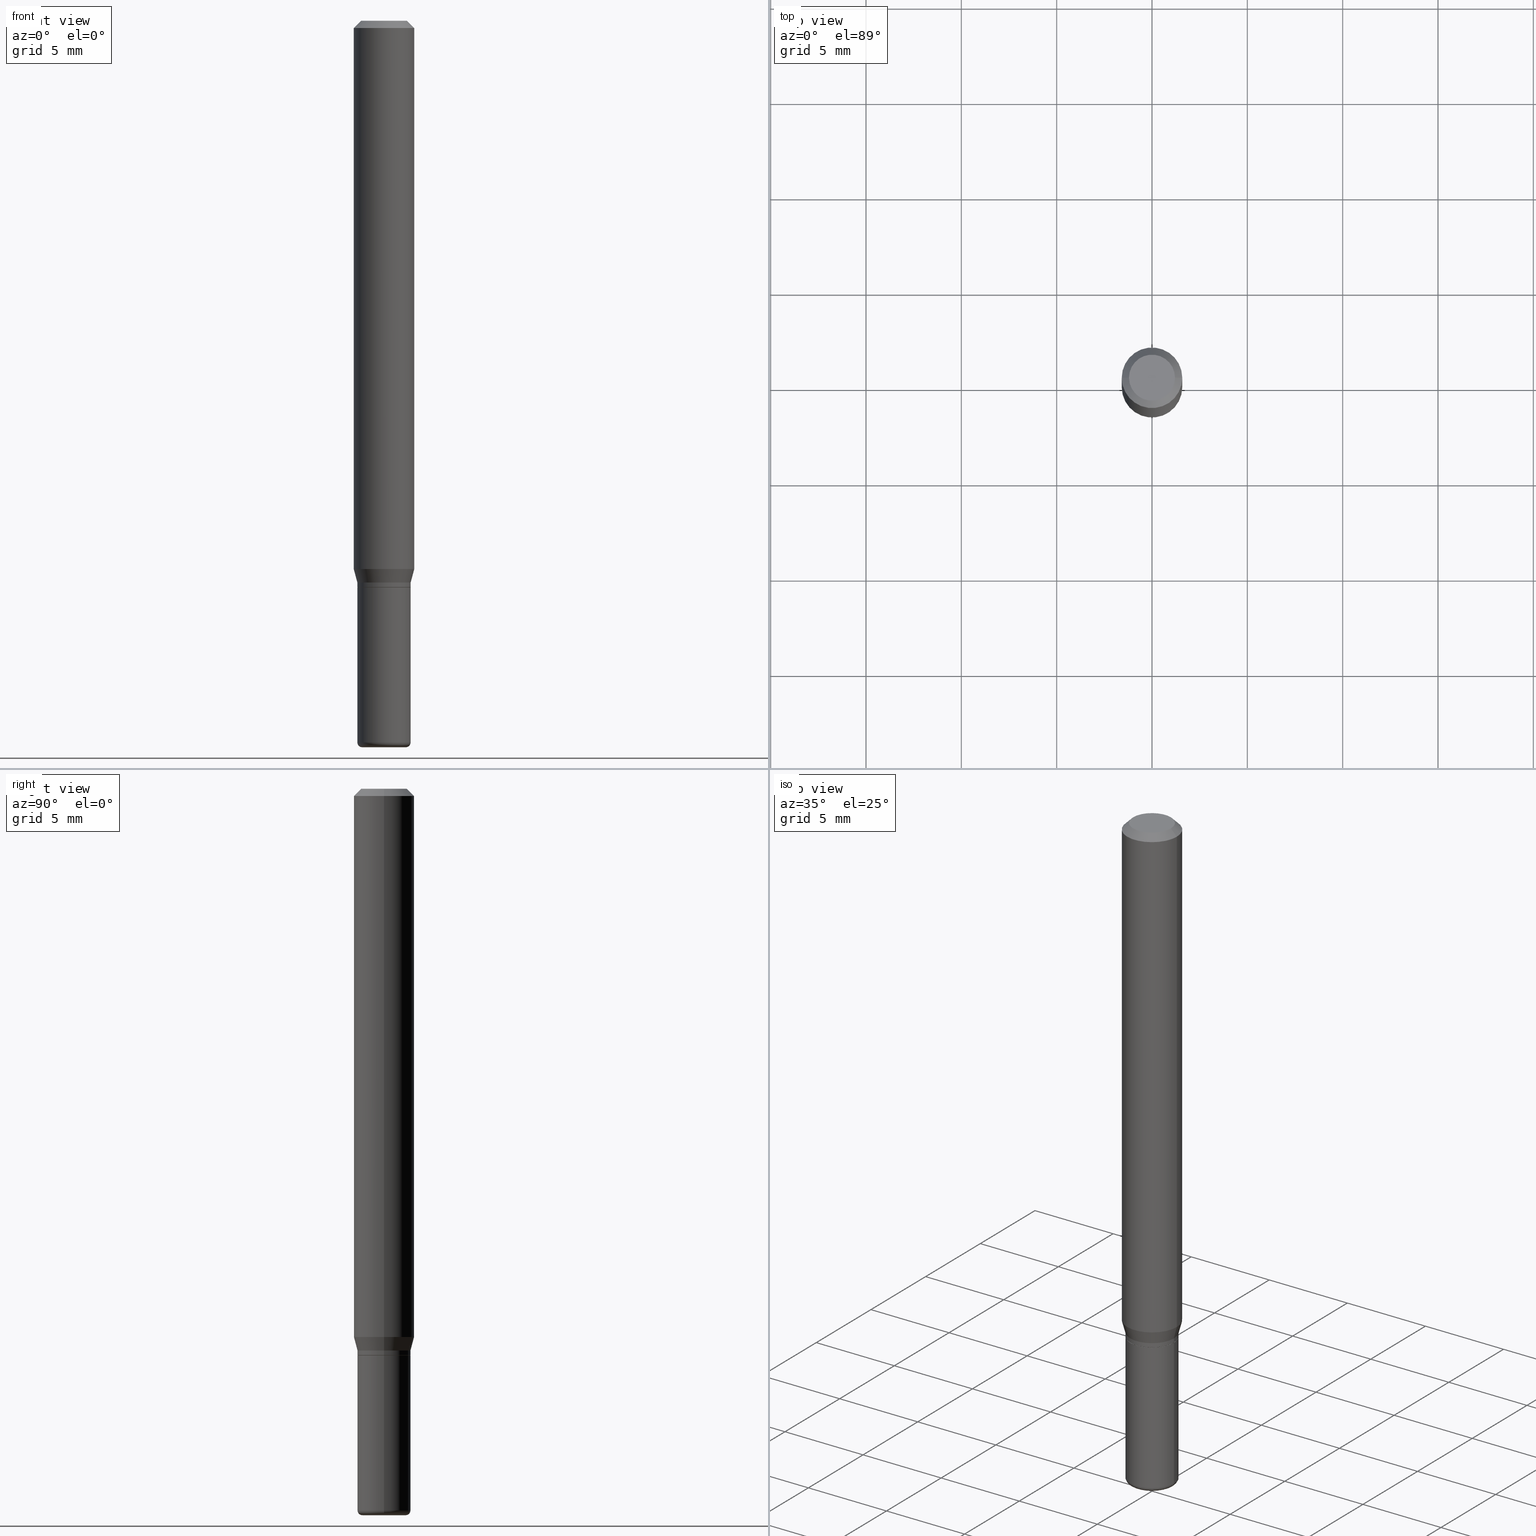
[diagram: canonical four-view strip — front | top / right | iso, engineering-drawing reading convention]
A machine part, canonical four-view strip (front | top / right | iso — engineering-drawing reading convention). The complete STEP part file that produces these views, byte-faithful:
ISO-10303-21;
HEADER;
FILE_DESCRIPTION (( 'STEP AP203' ),
    '1' );
FILE_NAME ('08755.STEP',
    '2024-02-29T20:50:27',
    ( '' ),
    ( '' ),
    'SwSTEP 2.0',
    'SolidWorks 2023',
    '' );
FILE_SCHEMA (( 'CONFIG_CONTROL_DESIGN' ));
ENDSEC;

DATA;
#1 = VERTEX_POINT ( 'NONE', #203 ) ;
#2 = DIRECTION ( 'NONE',  ( 2.438088387897960049E-29, -3.491481338843145188E-15, -1.000000000000000000 ) ) ;
#3 = VERTEX_POINT ( 'NONE', #115 ) ;
#4 = CARTESIAN_POINT ( 'NONE',  ( 2.859975768833516703E-29, -4.083287425777058564E-15, -1.169499999999999984 ) ) ;
#5 = CIRCLE ( 'NONE', #67, 0.05500000000000000028 ) ;
#6 = APPROVAL_ROLE ( '' ) ;
#7 = CC_DESIGN_PERSON_AND_ORGANIZATION_ASSIGNMENT ( #362, #282, ( #177 ) ) ;
#8 = ORIENTED_EDGE ( 'NONE', *, *, #351, .F. ) ;
#9 = CARTESIAN_POINT ( 'NONE',  ( -0.06250000000000000000, 4.440892098500626162E-16, -3.074334431409316114E-30 ) ) ;
#10 = DIRECTION ( 'NONE',  ( -2.438088387897960049E-29, 3.491481338843145188E-15, 1.000000000000000000 ) ) ;
#11 = CC_DESIGN_DATE_AND_TIME_ASSIGNMENT ( #429, #149, ( #413 ) ) ;
#12 = AXIS2_PLACEMENT_3D ( 'NONE', #419, #475, #427 ) ;
#13 = VECTOR ( 'NONE', #367, 39.37007874015748143 ) ;
#14 = LOCAL_TIME ( 15, 50, 27.00000000000000000, #34 ) ;
#15 = VERTEX_POINT ( 'NONE', #314 ) ;
#16 = DIRECTION ( 'NONE',  ( 1.000000000000000000, -6.982962677686268288E-15, 4.883557194083113462E-29 ) ) ;
#17 = EDGE_CURVE ( 'NONE', #211, #3, #66, .T. ) ;
#18 = ORIENTED_EDGE ( 'NONE', *, *, #428, .T. ) ;
#19 = ADVANCED_FACE ( 'NONE', ( #389 ), #287, .T. ) ;
#20 = LENGTH_MEASURE_WITH_UNIT ( LENGTH_MEASURE( 0.02539999999999999897 ), #450 );
#21 = AXIS2_PLACEMENT_3D ( 'NONE', #144, #10, #60 ) ;
#22 = ORIENTED_EDGE ( 'NONE', *, *, #179, .T. ) ;
#23 = CONICAL_SURFACE ( 'NONE', #399, 0.06250000000000000000, 0.7853981633974488341 ) ;
#24 = PLANE ( 'NONE',  #21 ) ;
#25 = DIRECTION ( 'NONE',  ( 1.000000000000000000, -6.982962677686262766E-15, 0.000000000000000000 ) ) ;
#26 = DIRECTION ( 'NONE',  ( -2.445468806185136597E-29, 3.491481338843145583E-15, 1.000000000000000000 ) ) ;
#27 = DIRECTION ( 'NONE',  ( -2.445468806185136597E-29, 3.491481338843145583E-15, 1.000000000000000000 ) ) ;
#28 = AXIS2_PLACEMENT_3D ( 'NONE', #64, #348, #16 ) ;
#29 = AXIS2_PLACEMENT_3D ( 'NONE', #4, #312, #127 ) ;
#30 = LINE ( 'NONE', #196, #168 ) ;
#31 = CYLINDRICAL_SURFACE ( 'NONE', #423, 0.05499999999999995864 ) ;
#32 = DIRECTION ( 'NONE',  ( -2.445468806185136877E-29, 3.491481338843145188E-15, 1.000000000000000000 ) ) ;
#33 = CARTESIAN_POINT ( 'NONE',  ( -0.05499999999999995171, -3.583810549235585944E-15, -1.160000000000000142 ) ) ;
#34 = COORDINATED_UNIVERSAL_TIME_OFFSET ( 5, 0, .BEHIND. ) ;
#35 = DIRECTION ( 'NONE',  ( 1.000000000000000000, -6.982962677686265922E-15, 4.876176775795935793E-29 ) ) ;
#36 = DIRECTION ( 'NONE',  ( -2.445468806185136597E-29, 3.491481338843145583E-15, 1.000000000000000000 ) ) ;
#37 = DIRECTION ( 'NONE',  ( -2.445468806185136597E-29, 3.491481338843145583E-15, 1.000000000000000000 ) ) ;
#38 = AXIS2_PLACEMENT_3D ( 'NONE', #65, #74, #397 ) ;
#39 = FACE_OUTER_BOUND ( 'NONE', #90, .T. ) ;
#40 = AXIS2_PLACEMENT_3D ( 'NONE', #395, #344, #35 ) ;
#41 = PLANE ( 'NONE',  #436 ) ;
#42 = VERTEX_POINT ( 'NONE', #263 ) ;
#43 = PERSON_AND_ORGANIZATION ( #175, #236 ) ;
#44 = SECURITY_CLASSIFICATION_LEVEL ( 'unclassified' ) ;
#45 = EDGE_LOOP ( 'NONE', ( #207, #277, #22, #117 ) ) ;
#46 = AXIS2_PLACEMENT_3D ( 'NONE', #113, #71, #354 ) ;
#47 = CIRCLE ( 'NONE', #95, 0.06250000000000000000 ) ;
#48 = ORIENTED_EDGE ( 'NONE', *, *, #78, .F. ) ;
#49 = DIRECTION ( 'NONE',  ( 1.000000000000000000, -6.982962677686266711E-15, 4.876176775795935793E-29 ) ) ;
#50 = DIRECTION ( 'NONE',  ( 0.7071067811865479058, -7.319954787623257623E-15, -0.7071067811865471286 ) ) ;
#51 = ORIENTED_EDGE ( 'NONE', *, *, #88, .F. ) ;
#52 = AXIS2_PLACEMENT_3D ( 'NONE', #496, #261, #133 ) ;
#53 = AXIS2_PLACEMENT_3D ( 'NONE', #372, #379, #98 ) ;
#54 = CYLINDRICAL_SURFACE ( 'NONE', #121, 0.05499999999999995864 ) ;
#55 = EDGE_LOOP ( 'NONE', ( #123, #214, #215, #235 ) ) ;
#56 = ORIENTED_EDGE ( 'NONE', *, *, #88, .T. ) ;
#57 = AXIS2_PLACEMENT_3D ( 'NONE', #424, #150, #69 ) ;
#58 = ORIENTED_EDGE ( 'NONE', *, *, #485, .T. ) ;
#59 = EDGE_CURVE ( 'NONE', #368, #42, #249, .T. ) ;
#60 = DIRECTION ( 'NONE',  ( 1.000000000000000000, -6.982962677686265922E-15, 4.876176775795935793E-29 ) ) ;
#61 = DIRECTION ( 'NONE',  ( 1.000000000000000000, 0.000000000000000000, 0.000000000000000000 ) ) ;
#62 = CARTESIAN_POINT ( 'NONE',  ( 2.859975768833516703E-29, -4.083287425777058564E-15, -1.169499999999999984 ) ) ;
#63 = CARTESIAN_POINT ( 'NONE',  ( 2.836743815174758520E-29, -4.050118353058049996E-15, -1.160000000000000142 ) ) ;
#64 = CARTESIAN_POINT ( 'NONE',  ( 3.643748521215853910E-29, -5.202307194876288105E-15, -1.490000000000000213 ) ) ;
#65 = CARTESIAN_POINT ( 'NONE',  ( 3.668203209277704895E-29, -5.237222008264718177E-15, -1.500000000000000222 ) ) ;
#66 = CIRCLE ( 'NONE', #462, 0.05499999999999995171 ) ;
#67 = AXIS2_PLACEMENT_3D ( 'NONE', #181, #418, #290 ) ;
#68 = CC_DESIGN_APPROVAL ( #433, ( #177 ) ) ;
#69 = DIRECTION ( 'NONE',  ( 1.000000000000000000, -6.982962677686266711E-15, 4.876176775795935793E-29 ) ) ;
#70 = ADVANCED_FACE ( 'NONE', ( #39 ), #260, .T. ) ;
#71 = DIRECTION ( 'NONE',  ( -2.445468806185136597E-29, 3.491481338843145583E-15, 1.000000000000000000 ) ) ;
#72 = CARTESIAN_POINT ( 'NONE',  ( -0.05449999999999997208, -3.697787375457225517E-15, -1.170000000000000151 ) ) ;
#73 = FACE_OUTER_BOUND ( 'NONE', #245, .T. ) ;
#74 = DIRECTION ( 'NONE',  ( -2.445468806185136597E-29, 3.491481338843145583E-15, 1.000000000000000000 ) ) ;
#75 = PERSON_AND_ORGANIZATION_ROLE ( 'classification_officer' ) ;
#76 = ORIENTED_EDGE ( 'NONE', *, *, #116, .F. ) ;
#77 = AXIS2_PLACEMENT_3D ( 'NONE', #458, #93, #371 ) ;
#78 = EDGE_CURVE ( 'NONE', #503, #383, #226, .T. ) ;
#79 = CC_DESIGN_APPROVAL ( #138, ( #413 ) ) ;
#80 = LINE ( 'NONE', #517, #329 ) ;
#81 = CALENDAR_DATE ( 2024, 29, 2 ) ;
#82 = ORIENTED_EDGE ( 'NONE', *, *, #151, .T. ) ;
#83 = CARTESIAN_POINT ( 'NONE',  ( 0.04499999999999999833, -5.516540515372169792E-15, -1.490000000000000213 ) ) ;
#84 = APPROVAL_STATUS ( 'not_yet_approved' ) ;
#85 = LINE ( 'NONE', #448, #109 ) ;
#86 = AXIS2_PLACEMENT_3D ( 'NONE', #346, #299, #304 ) ;
#87 = CIRCLE ( 'NONE', #309, 0.009999999999999953371 ) ;
#88 = EDGE_CURVE ( 'NONE', #275, #383, #453, .T. ) ;
#89 = FACE_OUTER_BOUND ( 'NONE', #172, .T. ) ;
#90 = EDGE_LOOP ( 'NONE', ( #295, #360, #132, #476 ) ) ;
#91 = FACE_OUTER_BOUND ( 'NONE', #134, .T. ) ;
#92 = VERTEX_POINT ( 'NONE', #310 ) ;
#93 = DIRECTION ( 'NONE',  ( -2.445468806185136597E-29, 3.491481338843145583E-15, 1.000000000000000000 ) ) ;
#94 = AXIS2_PLACEMENT_3D ( 'NONE', #470, #356, #467 ) ;
#95 = AXIS2_PLACEMENT_3D ( 'NONE', #118, #274, #441 ) ;
#96 = VERTEX_POINT ( 'NONE', #33 ) ;
#97 = ORIENTED_EDGE ( 'NONE', *, *, #459, .T. ) ;
#98 = DIRECTION ( 'NONE',  ( 1.000000000000000000, -6.982962677686273810E-15, 0.000000000000000000 ) ) ;
#99 = ADVANCED_FACE ( 'NONE', ( #473 ), #31, .T. ) ;
#100 = ORIENTED_EDGE ( 'NONE', *, *, #504, .T. ) ;
#101 = CLOSED_SHELL ( 'NONE', ( #99, #19, #170, #417, #252, #278, #128, #444, #242, #373, #515, #284 ) ) ;
#102 = CARTESIAN_POINT ( 'NONE',  ( 0.05499999999999997946, -4.467350373049803548E-15, -1.169499999999999984 ) ) ;
#103 = AXIS2_PLACEMENT_3D ( 'NONE', #237, #490, #400 ) ;
#104 = CARTESIAN_POINT ( 'NONE',  ( 0.000000000000000000, 0.000000000000000000, 0.000000000000000000 ) ) ;
#105 = DIRECTION ( 'NONE',  ( -0.7071067811865479058, 2.468850131082261005E-15, -0.7071067811865471286 ) ) ;
#106 = FACE_OUTER_BOUND ( 'NONE', #311, .T. ) ;
#107 = ADVANCED_FACE ( 'NONE', ( #352 ), #337, .T. ) ;
#108 = DIRECTION ( 'NONE',  ( 1.000000000000000000, -6.982962677686268288E-15, 4.883557194083113462E-29 ) ) ;
#109 = VECTOR ( 'NONE', #155, 39.37007874015748143 ) ;
#110 = CARTESIAN_POINT ( 'NONE',  ( 2.836743815174758520E-29, -4.050118353058049996E-15, -1.160000000000000142 ) ) ;
#111 = LINE ( 'NONE', #72, #176 ) ;
#112 = COORDINATED_UNIVERSAL_TIME_OFFSET ( 5, 0, .BEHIND. ) ;
#113 = CARTESIAN_POINT ( 'NONE',  ( -6.680649051745406845E-45, 9.538196290434862081E-31, 2.731847993664263218E-16 ) ) ;
#114 = CARTESIAN_POINT ( 'NONE',  ( -0.05499999999999995171, -3.659319848389994547E-15, -1.160000000000000142 ) ) ;
#115 = CARTESIAN_POINT ( 'NONE',  ( 0.05499999999999995171, -5.586370142149032301E-15, -1.490000000000000213 ) ) ;
#116 = EDGE_CURVE ( 'NONE', #42, #368, #345, .T. ) ;
#117 = ORIENTED_EDGE ( 'NONE', *, *, #141, .F. ) ;
#118 = CARTESIAN_POINT ( 'NONE',  ( 3.668203209277632395E-31, -5.237222008264614861E-17, -0.01499999999999970281 ) ) ;
#119 = APPROVAL_DATE_TIME ( #319, #433 ) ;
#120 = ORIENTED_EDGE ( 'NONE', *, *, #143, .F. ) ;
#121 = AXIS2_PLACEMENT_3D ( 'NONE', #219, #342, #382 ) ;
#122 = DIRECTION ( 'NONE',  ( -1.000000000000000000, 6.982962677686266711E-15, 0.000000000000000000 ) ) ;
#123 = ORIENTED_EDGE ( 'NONE', *, *, #339, .T. ) ;
#124 = CALENDAR_DATE ( 2024, 29, 2 ) ;
#125 = ORIENTED_EDGE ( 'NONE', *, *, #518, .F. ) ;
#126 = CARTESIAN_POINT ( 'NONE',  ( 0.000000000000000000, 0.000000000000000000, 0.000000000000000000 ) ) ;
#127 = DIRECTION ( 'NONE',  ( 1.000000000000000000, -6.982962677686273021E-15, 0.000000000000000000 ) ) ;
#128 = ADVANCED_FACE ( 'NONE', ( #156 ), #265, .T. ) ;
#129 = VERTEX_POINT ( 'NONE', #228 ) ;
#130 = AXIS2_PLACEMENT_3D ( 'NONE', #409, #507, #420 ) ;
#131 = PRODUCT_RELATED_PRODUCT_CATEGORY ( 'detail', '', ( #269 ) ) ;
#132 = ORIENTED_EDGE ( 'NONE', *, *, #351, .T. ) ;
#133 = DIRECTION ( 'NONE',  ( 1.000000000000000000, -6.982962677686269077E-15, 0.000000000000000000 ) ) ;
#134 = EDGE_LOOP ( 'NONE', ( #359, #415 ) ) ;
#135 = EDGE_CURVE ( 'NONE', #368, #211, #381, .T. ) ;
#136 = FACE_OUTER_BOUND ( 'NONE', #480, .T. ) ;
#137 = ORIENTED_EDGE ( 'NONE', *, *, #17, .F. ) ;
#138 = APPROVAL ( #468, 'UNSPECIFIED' ) ;
#139 = AXIS2_PLACEMENT_3D ( 'NONE', #110, #358, #463 ) ;
#140 = ORIENTED_EDGE ( 'NONE', *, *, #518, .T. ) ;
#141 = EDGE_CURVE ( 'NONE', #291, #334, #512, .T. ) ;
#142 = ORIENTED_EDGE ( 'NONE', *, *, #258, .T. ) ;
#143 = EDGE_CURVE ( 'NONE', #92, #129, #111, .T. ) ;
#144 = CARTESIAN_POINT ( 'NONE',  ( 3.582686580359766038E-29, -5.359686688179453325E-15, -1.500000000000000222 ) ) ;
#145 = APPLICATION_PROTOCOL_DEFINITION ( 'international standard', 'config_control_design', 1994, #298 ) ;
#146 = CARTESIAN_POINT ( 'NONE',  ( -0.06250000000000000000, 3.840629472727455270E-16, -0.01499999999999970281 ) ) ;
#147 = FACE_OUTER_BOUND ( 'NONE', #288, .T. ) ;
#148 = LOCAL_TIME ( 15, 50, 27.00000000000000000, #206 ) ;
#149 = DATE_TIME_ROLE ( 'creation_date' ) ;
#150 = DIRECTION ( 'NONE',  ( -2.445468806185136597E-29, 3.491481338843145583E-15, 1.000000000000000000 ) ) ;
#151 = EDGE_CURVE ( 'NONE', #503, #96, #460, .T. ) ;
#152 = LINE ( 'NONE', #392, #443 ) ;
#153 = DIRECTION ( 'NONE',  ( -2.445468806185136597E-29, 3.491481338843145583E-15, 1.000000000000000000 ) ) ;
#154 = CC_DESIGN_PERSON_AND_ORGANIZATION_ASSIGNMENT ( #484, #75, ( #375 ) ) ;
#155 = DIRECTION ( 'NONE',  ( 0.7071067811864267805, -2.468850131080992517E-15, 0.7071067811866682540 ) ) ;
#156 = FACE_OUTER_BOUND ( 'NONE', #414, .T. ) ;
#157 = CONICAL_SURFACE ( 'NONE', #218, 0.06250000000000000000, 0.7853981633974488341 ) ;
#158 = DIRECTION ( 'NONE',  ( 1.000000000000000000, -6.982962677686273810E-15, 0.000000000000000000 ) ) ;
#159 = LINE ( 'NONE', #114, #501 ) ;
#160 = VERTEX_POINT ( 'NONE', #516 ) ;
#161 = EDGE_CURVE ( 'NONE', #96, #275, #159, .T. ) ;
#162 = AXIS2_PLACEMENT_3D ( 'NONE', #62, #471, #303 ) ;
#163 =( GEOMETRIC_REPRESENTATION_CONTEXT ( 3 ) GLOBAL_UNCERTAINTY_ASSIGNED_CONTEXT ( ( #435 ) ) GLOBAL_UNIT_ASSIGNED_CONTEXT ( ( #336, #338, #343 ) ) REPRESENTATION_CONTEXT ( 'NONE', 'WORKASPACE' ) );
#164 = CARTESIAN_POINT ( 'NONE',  ( -0.05499999999999995864, 3.907985046680548084E-16, -2.705414299640196260E-30 ) ) ;
#165 = SHAPE_DEFINITION_REPRESENTATION ( #191, #376 ) ;
#166 = EDGE_LOOP ( 'NONE', ( #82, #326, #498, #48 ) ) ;
#167 = PLANE ( 'NONE',  #327 ) ;
#168 = VECTOR ( 'NONE', #32, 39.37007874015748143 ) ;
#169 = AXIS2_PLACEMENT_3D ( 'NONE', #270, #421, #61 ) ;
#170 = ADVANCED_FACE ( 'NONE', ( #431 ), #157, .T. ) ;
#171 = CARTESIAN_POINT ( 'NONE',  ( 3.316907271900976589E-16, 0.04750000000000000749, -2.925296391183627249E-17 ) ) ;
#172 = EDGE_LOOP ( 'NONE', ( #251, #208, #502, #58 ) ) ;
#173 = LINE ( 'NONE', #499, #390 ) ;
#174 = ORIENTED_EDGE ( 'NONE', *, *, #466, .T. ) ;
#175 = PERSON ( 'UNSPECIFIED', 'UNSPECIFIED', 'UNSPECIFIED', ('UNSPECIFIED'), ('UNSPECIFIED'), ('UNSPECIFIED') ) ;
#176 = VECTOR ( 'NONE', #230, 39.37007874015748143 ) ;
#177 = PRODUCT_DEFINITION_FORMATION_WITH_SPECIFIED_SOURCE ( 'ANY', '', #269, .NOT_KNOWN. ) ;
#178 = EDGE_LOOP ( 'NONE', ( #457, #201, #479, #51 ) ) ;
#179 = EDGE_CURVE ( 'NONE', #286, #334, #508, .T. ) ;
#180 = DIRECTION ( 'NONE',  ( -2.445468806185136597E-29, 3.491481338843145583E-15, 1.000000000000000000 ) ) ;
#181 = CARTESIAN_POINT ( 'NONE',  ( 2.861198503236610065E-29, -4.085033166446480067E-15, -1.170000000000000151 ) ) ;
#182 = PERSON_AND_ORGANIZATION ( #175, #236 ) ;
#183 = DIRECTION ( 'NONE',  ( 2.445468806185136597E-29, -3.491481338843145583E-15, -1.000000000000000000 ) ) ;
#184 = AXIS2_PLACEMENT_3D ( 'NONE', #497, #247, #222 ) ;
#185 = ADVANCED_FACE ( 'NONE', ( #317 ), #41, .F. ) ;
#186 = AXIS2_PLACEMENT_3D ( 'NONE', #401, #199, #248 ) ;
#187 = CARTESIAN_POINT ( 'NONE',  ( 0.05499999999999995171, -4.434181300330794192E-15, -1.160000000000000142 ) ) ;
#188 = DIRECTION ( 'NONE',  ( 1.000000000000000000, -6.982962677686265922E-15, 4.876176775795935232E-29 ) ) ;
#189 = EDGE_CURVE ( 'NONE', #3, #211, #212, .T. ) ;
#190 = CARTESIAN_POINT ( 'NONE',  ( 2.861198503236610065E-29, -4.085033166446480067E-15, -1.170000000000000151 ) ) ;
#191 = PRODUCT_DEFINITION_SHAPE ( 'NONE', 'NONE',  #413 ) ;
#192 = CARTESIAN_POINT ( 'NONE',  ( 0.000000000000000000, 0.000000000000000000, 0.000000000000000000 ) ) ;
#193 = AXIS2_PLACEMENT_3D ( 'NONE', #506, #465, #393 ) ;
#194 = DATE_TIME_ROLE ( 'classification_date' ) ;
#195 = CIRCLE ( 'NONE', #186, 0.06250000000000000000 ) ;
#196 = CARTESIAN_POINT ( 'NONE',  ( -0.05499999999999997946, 3.907985046680549563E-16, -2.705414299640196961E-30 ) ) ;
#197 = CC_DESIGN_PERSON_AND_ORGANIZATION_ASSIGNMENT ( #43, #285, ( #177 ) ) ;
#198 = EDGE_LOOP ( 'NONE', ( #255, #434, #378, #8 ) ) ;
#199 = DIRECTION ( 'NONE',  ( -2.445468806185136597E-29, 3.491481338843145583E-15, 1.000000000000000000 ) ) ;
#200 = EDGE_CURVE ( 'NONE', #291, #160, #357, .T. ) ;
#201 = ORIENTED_EDGE ( 'NONE', *, *, #355, .T. ) ;
#202 = DIRECTION ( 'NONE',  ( 2.445468806185136597E-29, -3.491481338843145583E-15, -1.000000000000000000 ) ) ;
#203 = CARTESIAN_POINT ( 'NONE',  ( 0.05500000000000000028, -4.469096113719225052E-15, -1.170000000000000151 ) ) ;
#204 = EDGE_LOOP ( 'NONE', ( #374, #402 ) ) ;
#205 = CIRCLE ( 'NONE', #46, 0.04750000000000000749 ) ;
#206 = COORDINATED_UNIVERSAL_TIME_OFFSET ( 5, 0, .BEHIND. ) ;
#207 = ORIENTED_EDGE ( 'NONE', *, *, #369, .F. ) ;
#208 = ORIENTED_EDGE ( 'NONE', *, *, #200, .F. ) ;
#209 = CARTESIAN_POINT ( 'NONE',  ( 3.668203209277632395E-31, -5.237222008264614861E-17, -0.01499999999999970281 ) ) ;
#210 = ADVANCED_FACE ( 'NONE', ( #147 ), #266, .T. ) ;
#211 = VERTEX_POINT ( 'NONE', #388 ) ;
#212 = CIRCLE ( 'NONE', #77, 0.05499999999999995171 ) ;
#213 = CC_DESIGN_APPROVAL ( #272, ( #375 ) ) ;
#214 = ORIENTED_EDGE ( 'NONE', *, *, #143, .T. ) ;
#215 = ORIENTED_EDGE ( 'NONE', *, *, #466, .F. ) ;
#216 = ORIENTED_EDGE ( 'NONE', *, *, #189, .F. ) ;
#217 = EDGE_CURVE ( 'NONE', #1, #456, #5, .T. ) ;
#218 = AXIS2_PLACEMENT_3D ( 'NONE', #387, #183, #241 ) ;
#219 = CARTESIAN_POINT ( 'NONE',  ( 0.000000000000000000, 0.000000000000000000, 0.000000000000000000 ) ) ;
#220 = CC_DESIGN_PERSON_AND_ORGANIZATION_ASSIGNMENT ( #474, #223, ( #413 ) ) ;
#221 = PERSON_AND_ORGANIZATION ( #175, #236 ) ;
#222 = DIRECTION ( 'NONE',  ( 1.000000000000000000, -6.982962677686269077E-15, 0.000000000000000000 ) ) ;
#223 = PERSON_AND_ORGANIZATION_ROLE ( 'creator' ) ;
#224 = FACE_OUTER_BOUND ( 'NONE', #204, .T. ) ;
#225 = DIRECTION ( 'NONE',  ( 1.000000000000000000, -6.982962677686269077E-15, 0.000000000000000000 ) ) ;
#226 = LINE ( 'NONE', #187, #256 ) ;
#227 = VECTOR ( 'NONE', #50, 39.37007874015748143 ) ;
#228 = CARTESIAN_POINT ( 'NONE',  ( -0.05499999999999997946, -3.692488921109003115E-15, -1.169499999999999984 ) ) ;
#229 = APPLICATION_PROTOCOL_DEFINITION ( 'international standard', 'config_control_design', 1994, #416 ) ;
#230 = DIRECTION ( 'NONE',  ( -0.7071067811864267805, 7.493145998869918709E-15, 0.7071067811866682540 ) ) ;
#231 = ADVANCED_FACE ( 'NONE', ( #106 ), #24, .F. ) ;
#232 = CYLINDRICAL_SURFACE ( 'NONE', #494, 0.06250000000000000000 ) ;
#233 = DIRECTION ( 'NONE',  ( 1.000000000000000000, -6.982962677686269077E-15, 0.000000000000000000 ) ) ;
#234 = AXIS2_PLACEMENT_3D ( 'NONE', #63, #396, #225 ) ;
#235 = ORIENTED_EDGE ( 'NONE', *, *, #306, .F. ) ;
#236 = ORGANIZATION ( 'UNSPECIFIED', 'UNSPECIFIED', '' ) ;
#237 = CARTESIAN_POINT ( 'NONE',  ( 3.668203209277632395E-31, -5.237222008264614861E-17, -0.01499999999999970281 ) ) ;
#238 = CARTESIAN_POINT ( 'NONE',  ( -0.05500000000000000028, -4.252871675993329426E-15, -1.170000000000000151 ) ) ;
#239 = COORDINATED_UNIVERSAL_TIME_OFFSET ( 5, 0, .BEHIND. ) ;
#240 = ORIENTED_EDGE ( 'NONE', *, *, #59, .T. ) ;
#241 = DIRECTION ( 'NONE',  ( -1.000000000000000000, 6.982962677686266711E-15, 0.000000000000000000 ) ) ;
#242 = ADVANCED_FACE ( 'NONE', ( #91 ), #167, .F. ) ;
#243 = CARTESIAN_POINT ( 'NONE',  ( 0.05499999999999995171, -4.434181300330794192E-15, -1.160000000000000142 ) ) ;
#244 = DIRECTION ( 'NONE',  ( -6.982962677686266711E-15, -1.000000000000000000, 3.491481338843145583E-15 ) ) ;
#245 = EDGE_LOOP ( 'NONE', ( #100, #18, #273, #323 ) ) ;
#246 = ORIENTED_EDGE ( 'NONE', *, *, #296, .F. ) ;
#247 = DIRECTION ( 'NONE',  ( -2.445468806185136597E-29, 3.491481338843145583E-15, 1.000000000000000000 ) ) ;
#248 = DIRECTION ( 'NONE',  ( 1.000000000000000000, -6.982962677686262766E-15, 0.000000000000000000 ) ) ;
#249 = CIRCLE ( 'NONE', #38, 0.04499999999999999833 ) ;
#250 = CIRCLE ( 'NONE', #301, 0.05449999999999997208 ) ;
#251 = ORIENTED_EDGE ( 'NONE', *, *, #442, .F. ) ;
#252 = ADVANCED_FACE ( 'NONE', ( #328 ), #276, .T. ) ;
#253 = ORIENTED_EDGE ( 'NONE', *, *, #116, .T. ) ;
#254 = DIRECTION ( 'NONE',  ( -2.445468806185136877E-29, 3.491481338843145188E-15, 1.000000000000000000 ) ) ;
#255 = ORIENTED_EDGE ( 'NONE', *, *, #189, .T. ) ;
#256 = VECTOR ( 'NONE', #511, 39.37007874015748854 ) ;
#257 = DIRECTION ( 'NONE',  ( -1.000000000000000000, 6.982962677686265922E-15, -4.876176775795935793E-29 ) ) ;
#258 = EDGE_CURVE ( 'NONE', #456, #1, #308, .T. ) ;
#259 = CARTESIAN_POINT ( 'NONE',  ( -0.06250000000000000000, -1.558292130156879916E-15, -0.01499999999999970281 ) ) ;
#260 = CYLINDRICAL_SURFACE ( 'NONE', #493, 0.05499999999999997946 ) ;
#261 = DIRECTION ( 'NONE',  ( -2.445468806185136597E-29, 3.491481338843145583E-15, 1.000000000000000000 ) ) ;
#262 = CC_DESIGN_DATE_AND_TIME_ASSIGNMENT ( #322, #194, ( #375 ) ) ;
#263 = CARTESIAN_POINT ( 'NONE',  ( 0.04499999999999999833, -5.551455328760600652E-15, -1.500000000000000222 ) ) ;
#264 = CARTESIAN_POINT ( 'NONE',  ( 2.861198503236610065E-29, -4.085033166446480067E-15, -1.170000000000000151 ) ) ;
#265 = CYLINDRICAL_SURFACE ( 'NONE', #57, 0.06250000000000000000 ) ;
#266 = TOROIDAL_SURFACE ( 'NONE', #28, 0.04499999999999999833, 0.009999999999999953371 ) ;
#267 = LOCAL_TIME ( 15, 50, 27.00000000000000000, #489 ) ;
#268 = DIRECTION ( 'NONE',  ( -2.445468806185136597E-29, 3.491481338843145583E-15, 1.000000000000000000 ) ) ;
#269 = PRODUCT ( '08755', '08755', '', ( #349 ) ) ;
#270 = CARTESIAN_POINT ( 'NONE',  ( 0.000000000000000000, 0.000000000000000000, 0.000000000000000000 ) ) ;
#271 = DIRECTION ( 'NONE',  ( -0.2588190451025199623, 5.211531920934540787E-15, 0.9659258262890684232 ) ) ;
#272 = APPROVAL ( #84, 'UNSPECIFIED' ) ;
#273 = ORIENTED_EDGE ( 'NONE', *, *, #179, .F. ) ;
#274 = DIRECTION ( 'NONE',  ( -2.445468806185136597E-29, 3.491481338843145583E-15, 1.000000000000000000 ) ) ;
#275 = VERTEX_POINT ( 'NONE', #297 ) ;
#276 = CONICAL_SURFACE ( 'NONE', #52, 0.05499999999999995171, 0.2617993877991485752 ) ;
#277 = ORIENTED_EDGE ( 'NONE', *, *, #442, .T. ) ;
#278 = ADVANCED_FACE ( 'NONE', ( #412 ), #410, .T. ) ;
#279 = VERTEX_POINT ( 'NONE', #102 ) ;
#280 = DIRECTION ( 'NONE',  ( 1.000000000000000000, -6.982962677686265922E-15, 4.876176775795935232E-29 ) ) ;
#281 = EDGE_LOOP ( 'NONE', ( #174, #313, #330, #125 ) ) ;
#282 = PERSON_AND_ORGANIZATION_ROLE ( 'creator' ) ;
#283 = DIRECTION ( 'NONE',  ( -2.445468806185136597E-29, 3.491481338843145583E-15, 1.000000000000000000 ) ) ;
#284 = ADVANCED_FACE ( 'NONE', ( #136 ), #54, .T. ) ;
#285 = PERSON_AND_ORGANIZATION_ROLE ( 'design_supplier' ) ;
#286 = VERTEX_POINT ( 'NONE', #340 ) ;
#287 = CONICAL_SURFACE ( 'NONE', #94, 0.05449999999999997208, 0.7853981633972775267 ) ;
#288 = EDGE_LOOP ( 'NONE', ( #253, #477, #216, #449 ) ) ;
#289 = ORIENTED_EDGE ( 'NONE', *, *, #428, .F. ) ;
#290 = DIRECTION ( 'NONE',  ( 1.000000000000000000, -6.982962677686262766E-15, 0.000000000000000000 ) ) ;
#291 = VERTEX_POINT ( 'NONE', #505 ) ;
#292 = CLOSED_SHELL ( 'NONE', ( #210, #481, #185, #70, #107, #231 ) ) ;
#293 = CIRCLE ( 'NONE', #364, 0.05449999999999997208 ) ;
#294 = CIRCLE ( 'NONE', #29, 0.05499999999999997946 ) ;
#295 = ORIENTED_EDGE ( 'NONE', *, *, #316, .F. ) ;
#296 = EDGE_CURVE ( 'NONE', #129, #96, #500, .T. ) ;
#297 = CARTESIAN_POINT ( 'NONE',  ( -0.06250000000000000000, -3.508301250081177341E-15, -1.132009618943233376 ) ) ;
#298 = APPLICATION_CONTEXT ( 'configuration controlled 3d designs of mechanical parts and assemblies' ) ;
#299 = DIRECTION ( 'NONE',  ( -2.445468806185136597E-29, 3.491481338843145583E-15, 1.000000000000000000 ) ) ;
#300 = CONICAL_SURFACE ( 'NONE', #53, 0.05449999999999997208, 0.7853981633972775267 ) ;
#301 = AXIS2_PLACEMENT_3D ( 'NONE', #190, #513, #158 ) ;
#302 = PERSON_AND_ORGANIZATION ( #175, #236 ) ;
#303 = DIRECTION ( 'NONE',  ( 1.000000000000000000, -6.982962677686273021E-15, 0.000000000000000000 ) ) ;
#304 = DIRECTION ( 'NONE',  ( 1.000000000000000000, -6.982962677686262766E-15, 0.000000000000000000 ) ) ;
#305 = DIRECTION ( 'NONE',  ( -2.445468806185136877E-29, 3.491481338843145188E-15, 1.000000000000000000 ) ) ;
#306 = EDGE_CURVE ( 'NONE', #15, #279, #85, .T. ) ;
#307 = CARTESIAN_POINT ( 'NONE',  ( 0.000000000000000000, 0.000000000000000000, 0.000000000000000000 ) ) ;
#308 = CIRCLE ( 'NONE', #472, 0.05500000000000000028 ) ;
#309 = AXIS2_PLACEMENT_3D ( 'NONE', #83, #244, #407 ) ;
#310 = CARTESIAN_POINT ( 'NONE',  ( -0.05449999999999997208, -3.695138148283114316E-15, -1.170000000000000151 ) ) ;
#311 = EDGE_LOOP ( 'NONE', ( #76, #318 ) ) ;
#312 = DIRECTION ( 'NONE',  ( -2.445468806185136597E-29, 3.491481338843145583E-15, 1.000000000000000000 ) ) ;
#313 = ORIENTED_EDGE ( 'NONE', *, *, #296, .T. ) ;
#314 = CARTESIAN_POINT ( 'NONE',  ( 0.05449999999999997208, -4.465604632380382045E-15, -1.170000000000000151 ) ) ;
#315 = VECTOR ( 'NONE', #105, 39.37007874015748143 ) ;
#316 = EDGE_CURVE ( 'NONE', #211, #456, #30, .T. ) ;
#317 = FACE_OUTER_BOUND ( 'NONE', #454, .T. ) ;
#318 = ORIENTED_EDGE ( 'NONE', *, *, #59, .F. ) ;
#319 = DATE_AND_TIME ( #81, #445 ) ;
#320 = ORIENTED_EDGE ( 'NONE', *, *, #324, .T. ) ;
#321 = LINE ( 'NONE', #9, #13 ) ;
#322 = DATE_AND_TIME ( #124, #148 ) ;
#323 = ORIENTED_EDGE ( 'NONE', *, *, #459, .F. ) ;
#324 = EDGE_CURVE ( 'NONE', #129, #279, #514, .T. ) ;
#325 = DIMENSIONAL_EXPONENTS ( 1.000000000000000000, 0.000000000000000000, 0.000000000000000000, 0.000000000000000000, 0.000000000000000000, 0.000000000000000000, 0.000000000000000000 ) ;
#326 = ORIENTED_EDGE ( 'NONE', *, *, #161, .T. ) ;
#327 = AXIS2_PLACEMENT_3D ( 'NONE', #171, #331, #384 ) ;
#328 = FACE_OUTER_BOUND ( 'NONE', #166, .T. ) ;
#329 = VECTOR ( 'NONE', #363, 39.37007874015748143 ) ;
#330 = ORIENTED_EDGE ( 'NONE', *, *, #151, .F. ) ;
#331 = DIRECTION ( 'NONE',  ( 2.438088387897960049E-29, -3.491481338843145188E-15, -1.000000000000000000 ) ) ;
#332 = ORIENTED_EDGE ( 'NONE', *, *, #377, .T. ) ;
#333 = FACE_OUTER_BOUND ( 'NONE', #451, .T. ) ;
#334 = VERTEX_POINT ( 'NONE', #259 ) ;
#335 = MANIFOLD_SOLID_BREP ( 'Body-Move/Copy2[2]', #101 ) ;
#336 =( CONVERSION_BASED_UNIT ( 'INCH', #20 ) LENGTH_UNIT ( ) NAMED_UNIT ( #325 ) );
#337 = TOROIDAL_SURFACE ( 'NONE', #405, 0.04499999999999999833, 0.009999999999999953371 ) ;
#338 =( NAMED_UNIT ( * ) PLANE_ANGLE_UNIT ( ) SI_UNIT ( $, .RADIAN. ) );
#339 = EDGE_CURVE ( 'NONE', #15, #92, #293, .T. ) ;
#340 = CARTESIAN_POINT ( 'NONE',  ( 0.06250000000000000000, -4.888073874380378612E-16, -0.01499999999999970281 ) ) ;
#341 = DIRECTION ( 'NONE',  ( 1.000000000000000000, -6.982962677686265922E-15, 4.876176775795935793E-29 ) ) ;
#342 = DIRECTION ( 'NONE',  ( -2.445468806185136597E-29, 3.491481338843145583E-15, 1.000000000000000000 ) ) ;
#343 =( NAMED_UNIT ( * ) SI_UNIT ( $, .STERADIAN. ) SOLID_ANGLE_UNIT ( ) );
#344 = DIRECTION ( 'NONE',  ( -2.438088387897960049E-29, 3.491481338843145188E-15, 1.000000000000000000 ) ) ;
#345 = CIRCLE ( 'NONE', #12, 0.04499999999999999833 ) ;
#346 = CARTESIAN_POINT ( 'NONE',  ( 2.768294211427200085E-29, -3.952390459931239169E-15, -1.132009618943233376 ) ) ;
#347 = CC_DESIGN_SECURITY_CLASSIFICATION ( #375, ( #177 ) ) ;
#348 = DIRECTION ( 'NONE',  ( -2.445468806185136597E-29, 3.491481338843145583E-15, 1.000000000000000000 ) ) ;
#349 = MECHANICAL_CONTEXT ( 'NONE', #298, 'mechanical' ) ;
#350 = CARTESIAN_POINT ( 'NONE',  ( 3.643748521215853910E-29, -5.202307194876288105E-15, -1.490000000000000213 ) ) ;
#351 = EDGE_CURVE ( 'NONE', #3, #1, #152, .T. ) ;
#352 = FACE_OUTER_BOUND ( 'NONE', #488, .T. ) ;
#353 = APPROVAL_DATE_TIME ( #391, #138 ) ;
#354 = DIRECTION ( 'NONE',  ( 1.000000000000000000, -6.982962677686266711E-15, 4.852736867747365086E-29 ) ) ;
#355 = EDGE_CURVE ( 'NONE', #96, #503, #398, .T. ) ;
#356 = DIRECTION ( 'NONE',  ( -2.445468806185136597E-29, 3.491481338843145583E-15, 1.000000000000000000 ) ) ;
#357 = CIRCLE ( 'NONE', #130, 0.04750000000000000749 ) ;
#358 = DIRECTION ( 'NONE',  ( -2.445468806185136597E-29, 3.491481338843145583E-15, 1.000000000000000000 ) ) ;
#359 = ORIENTED_EDGE ( 'NONE', *, *, #200, .T. ) ;
#360 = ORIENTED_EDGE ( 'NONE', *, *, #17, .T. ) ;
#361 = CARTESIAN_POINT ( 'NONE',  ( 3.840629472727732850E-16, 0.05499999999999591327, -1.170000000000000151 ) ) ;
#362 = PERSON_AND_ORGANIZATION ( #175, #236 ) ;
#363 = DIRECTION ( 'NONE',  ( -2.445468806185136877E-29, 3.491481338843145188E-15, 1.000000000000000000 ) ) ;
#364 = AXIS2_PLACEMENT_3D ( 'NONE', #264, #37, #510 ) ;
#365 = CALENDAR_DATE ( 2024, 29, 2 ) ;
#366 = ORIENTED_EDGE ( 'NONE', *, *, #485, .F. ) ;
#367 = DIRECTION ( 'NONE',  ( -2.445468806185136877E-29, 3.491481338843145188E-15, 1.000000000000000000 ) ) ;
#368 = VERTEX_POINT ( 'NONE', #426 ) ;
#369 = EDGE_CURVE ( 'NONE', #160, #291, #205, .T. ) ;
#370 = ORIENTED_EDGE ( 'NONE', *, *, #217, .T. ) ;
#371 = DIRECTION ( 'NONE',  ( 1.000000000000000000, -6.982962677686269077E-15, 0.000000000000000000 ) ) ;
#372 = CARTESIAN_POINT ( 'NONE',  ( 2.861198503236610065E-29, -4.085033166446480067E-15, -1.170000000000000151 ) ) ;
#373 = ADVANCED_FACE ( 'NONE', ( #224 ), #386, .F. ) ;
#374 = ORIENTED_EDGE ( 'NONE', *, *, #339, .F. ) ;
#375 = SECURITY_CLASSIFICATION ( '', '', #44 ) ;
#376 = ADVANCED_BREP_SHAPE_REPRESENTATION ( '08755', ( #509, #335, #169 ), #163 ) ;
#377 = EDGE_CURVE ( 'NONE', #92, #15, #250, .T. ) ;
#378 = ORIENTED_EDGE ( 'NONE', *, *, #217, .F. ) ;
#379 = DIRECTION ( 'NONE',  ( -2.445468806185136597E-29, 3.491481338843145583E-15, 1.000000000000000000 ) ) ;
#380 = ORIENTED_EDGE ( 'NONE', *, *, #135, .F. ) ;
#381 = CIRCLE ( 'NONE', #193, 0.009999999999999953371 ) ;
#382 = DIRECTION ( 'NONE',  ( 1.000000000000000000, -6.982962677686265922E-15, 4.876176775795935793E-29 ) ) ;
#383 = VERTEX_POINT ( 'NONE', #430 ) ;
#384 = DIRECTION ( 'NONE',  ( -1.000000000000000000, 6.982962677686265922E-15, -4.876176775795935793E-29 ) ) ;
#385 = CALENDAR_DATE ( 2024, 29, 2 ) ;
#386 = PLANE ( 'NONE',  #40 ) ;
#387 = CARTESIAN_POINT ( 'NONE',  ( 3.668203209277632395E-31, -5.237222008264614861E-17, -0.01499999999999970281 ) ) ;
#388 = CARTESIAN_POINT ( 'NONE',  ( -0.05499999999999995171, -4.252871675993329426E-15, -1.490000000000000213 ) ) ;
#389 = FACE_OUTER_BOUND ( 'NONE', #55, .T. ) ;
#390 = VECTOR ( 'NONE', #254, 39.37007874015748143 ) ;
#391 = DATE_AND_TIME ( #422, #14 ) ;
#392 = CARTESIAN_POINT ( 'NONE',  ( 0.05499999999999997946, -3.840629472727444916E-16, 2.681897226687763425E-30 ) ) ;
#393 = DIRECTION ( 'NONE',  ( -1.000000000000000000, 7.105427357600958471E-15, 0.000000000000000000 ) ) ;
#394 = APPROVAL_ROLE ( '' ) ;
#395 = CARTESIAN_POINT ( 'NONE',  ( 2.861198503236610065E-29, -4.085033166446480067E-15, -1.170000000000000151 ) ) ;
#396 = DIRECTION ( 'NONE',  ( -2.445468806185136597E-29, 3.491481338843145583E-15, 1.000000000000000000 ) ) ;
#397 = DIRECTION ( 'NONE',  ( 1.000000000000000000, -6.982962677686269077E-15, 0.000000000000000000 ) ) ;
#398 = CIRCLE ( 'NONE', #139, 0.05499999999999995171 ) ;
#399 = AXIS2_PLACEMENT_3D ( 'NONE', #209, #202, #122 ) ;
#400 = DIRECTION ( 'NONE',  ( 1.000000000000000000, -6.982962677686266711E-15, 0.000000000000000000 ) ) ;
#401 = CARTESIAN_POINT ( 'NONE',  ( 2.768294211427200085E-29, -3.952390459931239169E-15, -1.132009618943233376 ) ) ;
#402 = ORIENTED_EDGE ( 'NONE', *, *, #377, .F. ) ;
#403 = APPROVAL_ROLE ( '' ) ;
#404 = CARTESIAN_POINT ( 'NONE',  ( 3.643748521215853910E-29, -5.202307194876288105E-15, -1.490000000000000213 ) ) ;
#405 = AXIS2_PLACEMENT_3D ( 'NONE', #350, #268, #108 ) ;
#406 = DATE_AND_TIME ( #365, #267 ) ;
#407 = DIRECTION ( 'NONE',  ( 1.000000000000000000, -6.982962677686269077E-15, 0.000000000000000000 ) ) ;
#408 = ORIENTED_EDGE ( 'NONE', *, *, #306, .T. ) ;
#409 = CARTESIAN_POINT ( 'NONE',  ( -6.680649051745406845E-45, 9.538196290434862081E-31, 2.731847993664263218E-16 ) ) ;
#410 = CONICAL_SURFACE ( 'NONE', #184, 0.05499999999999995171, 0.2617993877991485752 ) ;
#411 = AXIS2_PLACEMENT_3D ( 'NONE', #126, #283, #280 ) ;
#412 = FACE_OUTER_BOUND ( 'NONE', #178, .T. ) ;
#413 = PRODUCT_DEFINITION ( 'UNKNOWN', '', #177, #469 ) ;
#414 = EDGE_LOOP ( 'NONE', ( #289, #56, #97, #366 ) ) ;
#415 = ORIENTED_EDGE ( 'NONE', *, *, #369, .T. ) ;
#416 = APPLICATION_CONTEXT ( 'configuration controlled 3d designs of mechanical parts and assemblies' ) ;
#417 = ADVANCED_FACE ( 'NONE', ( #73 ), #232, .T. ) ;
#418 = DIRECTION ( 'NONE',  ( -2.445468806185136597E-29, 3.491481338843145583E-15, 1.000000000000000000 ) ) ;
#419 = CARTESIAN_POINT ( 'NONE',  ( 3.668203209277704895E-29, -5.237222008264718177E-15, -1.500000000000000222 ) ) ;
#420 = DIRECTION ( 'NONE',  ( 1.000000000000000000, -6.982962677686266711E-15, 4.852736867747365086E-29 ) ) ;
#421 = DIRECTION ( 'NONE',  ( 0.000000000000000000, 0.000000000000000000, 1.000000000000000000 ) ) ;
#422 = CALENDAR_DATE ( 2024, 29, 2 ) ;
#423 = AXIS2_PLACEMENT_3D ( 'NONE', #192, #36, #341 ) ;
#424 = CARTESIAN_POINT ( 'NONE',  ( 0.000000000000000000, 0.000000000000000000, 0.000000000000000000 ) ) ;
#425 = CC_DESIGN_PERSON_AND_ORGANIZATION_ASSIGNMENT ( #302, #461, ( #269 ) ) ;
#426 = CARTESIAN_POINT ( 'NONE',  ( -0.04499999999999999833, -4.864493233690452733E-15, -1.500000000000000222 ) ) ;
#427 = DIRECTION ( 'NONE',  ( 1.000000000000000000, -6.982962677686269077E-15, 0.000000000000000000 ) ) ;
#428 = EDGE_CURVE ( 'NONE', #275, #334, #321, .T. ) ;
#429 = DATE_AND_TIME ( #385, #483 ) ;
#430 = CARTESIAN_POINT ( 'NONE',  ( 0.06250000000000000000, -4.388825627286631627E-15, -1.132009618943233376 ) ) ;
#431 = FACE_OUTER_BOUND ( 'NONE', #45, .T. ) ;
#432 = APPROVAL_DATE_TIME ( #406, #272 ) ;
#433 = APPROVAL ( #438, 'UNSPECIFIED' ) ;
#434 = ORIENTED_EDGE ( 'NONE', *, *, #316, .T. ) ;
#435 = UNCERTAINTY_MEASURE_WITH_UNIT (LENGTH_MEASURE( 1.000000000000000082E-05 ), #336, 'distance_accuracy_value', 'NONE');
#436 = AXIS2_PLACEMENT_3D ( 'NONE', #361, #2, #257 ) ;
#437 = APPROVAL_PERSON_ORGANIZATION ( #440, #272, #403 ) ;
#438 = APPROVAL_STATUS ( 'not_yet_approved' ) ;
#439 = ORIENTED_EDGE ( 'NONE', *, *, #492, .T. ) ;
#440 = PERSON_AND_ORGANIZATION ( #175, #236 ) ;
#441 = DIRECTION ( 'NONE',  ( 1.000000000000000000, -6.982962677686266711E-15, 0.000000000000000000 ) ) ;
#442 = EDGE_CURVE ( 'NONE', #160, #286, #491, .T. ) ;
#443 = VECTOR ( 'NONE', #305, 39.37007874015748143 ) ;
#444 = ADVANCED_FACE ( 'NONE', ( #89 ), #23, .T. ) ;
#445 = LOCAL_TIME ( 15, 50, 27.00000000000000000, #239 ) ;
#446 = ORIENTED_EDGE ( 'NONE', *, *, #355, .F. ) ;
#447 = CARTESIAN_POINT ( 'NONE',  ( 0.06250000000000000000, -4.811533449433669144E-16, -0.01499999999999970281 ) ) ;
#448 = CARTESIAN_POINT ( 'NONE',  ( 0.05449999999999997208, -4.465604632380382045E-15, -1.170000000000000151 ) ) ;
#449 = ORIENTED_EDGE ( 'NONE', *, *, #492, .F. ) ;
#450 =( LENGTH_UNIT ( ) NAMED_UNIT ( * ) SI_UNIT ( $, .METRE. ) );
#451 = EDGE_LOOP ( 'NONE', ( #120, #332, #408, #495 ) ) ;
#452 = CARTESIAN_POINT ( 'NONE',  ( 2.861198503236610065E-29, -4.085033166446480067E-15, -1.170000000000000151 ) ) ;
#453 = CIRCLE ( 'NONE', #86, 0.06250000000000000000 ) ;
#454 = EDGE_LOOP ( 'NONE', ( #370, #142 ) ) ;
#455 = APPROVAL_PERSON_ORGANIZATION ( #221, #433, #6 ) ;
#456 = VERTEX_POINT ( 'NONE', #238 ) ;
#457 = ORIENTED_EDGE ( 'NONE', *, *, #161, .F. ) ;
#458 = CARTESIAN_POINT ( 'NONE',  ( 3.643748521215853910E-29, -5.202307194876288105E-15, -1.490000000000000213 ) ) ;
#459 = EDGE_CURVE ( 'NONE', #383, #286, #80, .T. ) ;
#460 = CIRCLE ( 'NONE', #234, 0.05499999999999995171 ) ;
#461 = PERSON_AND_ORGANIZATION_ROLE ( 'design_owner' ) ;
#462 = AXIS2_PLACEMENT_3D ( 'NONE', #404, #153, #233 ) ;
#463 = DIRECTION ( 'NONE',  ( 1.000000000000000000, -6.982962677686269077E-15, 0.000000000000000000 ) ) ;
#464 = APPROVAL_PERSON_ORGANIZATION ( #182, #138, #394 ) ;
#465 = DIRECTION ( 'NONE',  ( 7.105427357601001859E-15, 1.000000000000000000, -3.491481338843145583E-15 ) ) ;
#466 = EDGE_CURVE ( 'NONE', #279, #129, #294, .T. ) ;
#467 = DIRECTION ( 'NONE',  ( 1.000000000000000000, -6.982962677686273810E-15, 0.000000000000000000 ) ) ;
#468 = APPROVAL_STATUS ( 'not_yet_approved' ) ;
#469 = DESIGN_CONTEXT ( 'detailed design', #416, 'design' ) ;
#470 = CARTESIAN_POINT ( 'NONE',  ( 2.861198503236610065E-29, -4.085033166446480067E-15, -1.170000000000000151 ) ) ;
#471 = DIRECTION ( 'NONE',  ( -2.445468806185136597E-29, 3.491481338843145583E-15, 1.000000000000000000 ) ) ;
#472 = AXIS2_PLACEMENT_3D ( 'NONE', #452, #180, #25 ) ;
#473 = FACE_OUTER_BOUND ( 'NONE', #281, .T. ) ;
#474 = PERSON_AND_ORGANIZATION ( #175, #236 ) ;
#475 = DIRECTION ( 'NONE',  ( -2.445468806185136597E-29, 3.491481338843145583E-15, 1.000000000000000000 ) ) ;
#476 = ORIENTED_EDGE ( 'NONE', *, *, #258, .F. ) ;
#477 = ORIENTED_EDGE ( 'NONE', *, *, #135, .T. ) ;
#478 = FACE_OUTER_BOUND ( 'NONE', #198, .T. ) ;
#479 = ORIENTED_EDGE ( 'NONE', *, *, #78, .T. ) ;
#480 = EDGE_LOOP ( 'NONE', ( #246, #320, #140, #446 ) ) ;
#481 = ADVANCED_FACE ( 'NONE', ( #478 ), #486, .T. ) ;
#482 = VECTOR ( 'NONE', #487, 39.37007874015748143 ) ;
#483 = LOCAL_TIME ( 15, 50, 27.00000000000000000, #112 ) ;
#484 = PERSON_AND_ORGANIZATION ( #175, #236 ) ;
#485 = EDGE_CURVE ( 'NONE', #334, #286, #47, .T. ) ;
#486 = CYLINDRICAL_SURFACE ( 'NONE', #411, 0.05499999999999997946 ) ;
#487 = DIRECTION ( 'NONE',  ( -2.445468806185136877E-29, 3.491481338843145188E-15, 1.000000000000000000 ) ) ;
#488 = EDGE_LOOP ( 'NONE', ( #380, #240, #439, #137 ) ) ;
#489 = COORDINATED_UNIVERSAL_TIME_OFFSET ( 5, 0, .BEHIND. ) ;
#490 = DIRECTION ( 'NONE',  ( -2.445468806185136597E-29, 3.491481338843145583E-15, 1.000000000000000000 ) ) ;
#491 = LINE ( 'NONE', #447, #227 ) ;
#492 = EDGE_CURVE ( 'NONE', #42, #3, #87, .T. ) ;
#493 = AXIS2_PLACEMENT_3D ( 'NONE', #307, #27, #188 ) ;
#494 = AXIS2_PLACEMENT_3D ( 'NONE', #104, #26, #49 ) ;
#495 = ORIENTED_EDGE ( 'NONE', *, *, #324, .F. ) ;
#496 = CARTESIAN_POINT ( 'NONE',  ( 2.836743815174758520E-29, -4.050118353058049996E-15, -1.160000000000000142 ) ) ;
#497 = CARTESIAN_POINT ( 'NONE',  ( 2.836743815174758520E-29, -4.050118353058049996E-15, -1.160000000000000142 ) ) ;
#498 = ORIENTED_EDGE ( 'NONE', *, *, #504, .F. ) ;
#499 = CARTESIAN_POINT ( 'NONE',  ( 0.05499999999999995864, -3.840629472727443437E-16, 2.681897226687762724E-30 ) ) ;
#500 = LINE ( 'NONE', #164, #482 ) ;
#501 = VECTOR ( 'NONE', #271, 39.37007874015748854 ) ;
#502 = ORIENTED_EDGE ( 'NONE', *, *, #141, .T. ) ;
#503 = VERTEX_POINT ( 'NONE', #243 ) ;
#504 = EDGE_CURVE ( 'NONE', #383, #275, #195, .T. ) ;
#505 = CARTESIAN_POINT ( 'NONE',  ( -0.04750000000000000749, 3.578768372314221353E-16, 2.731847993664239060E-16 ) ) ;
#506 = CARTESIAN_POINT ( 'NONE',  ( -0.04499999999999999833, -4.882562963784243527E-15, -1.490000000000000213 ) ) ;
#507 = DIRECTION ( 'NONE',  ( -2.445468806185136597E-29, 3.491481338843145583E-15, 1.000000000000000000 ) ) ;
#508 = CIRCLE ( 'NONE', #103, 0.06250000000000000000 ) ;
#509 = MANIFOLD_SOLID_BREP ( 'Body-Move/Copy2[1]', #292 ) ;
#510 = DIRECTION ( 'NONE',  ( 1.000000000000000000, -6.982962677686273810E-15, 0.000000000000000000 ) ) ;
#511 = DIRECTION ( 'NONE',  ( 0.2588190451025199623, 1.565188264969632617E-15, 0.9659258262890684232 ) ) ;
#512 = LINE ( 'NONE', #146, #315 ) ;
#513 = DIRECTION ( 'NONE',  ( -2.445468806185136597E-29, 3.491481338843145583E-15, 1.000000000000000000 ) ) ;
#514 = CIRCLE ( 'NONE', #162, 0.05499999999999997946 ) ;
#515 = ADVANCED_FACE ( 'NONE', ( #333 ), #300, .T. ) ;
#516 = CARTESIAN_POINT ( 'NONE',  ( 0.04750000000000000749, -4.035134999187568762E-16, 2.731847993664288856E-16 ) ) ;
#517 = CARTESIAN_POINT ( 'NONE',  ( 0.06250000000000000000, -4.364351673553916694E-16, 3.047610484872459871E-30 ) ) ;
#518 = EDGE_CURVE ( 'NONE', #279, #503, #173, .T. ) ;
ENDSEC;
END-ISO-10303-21;
